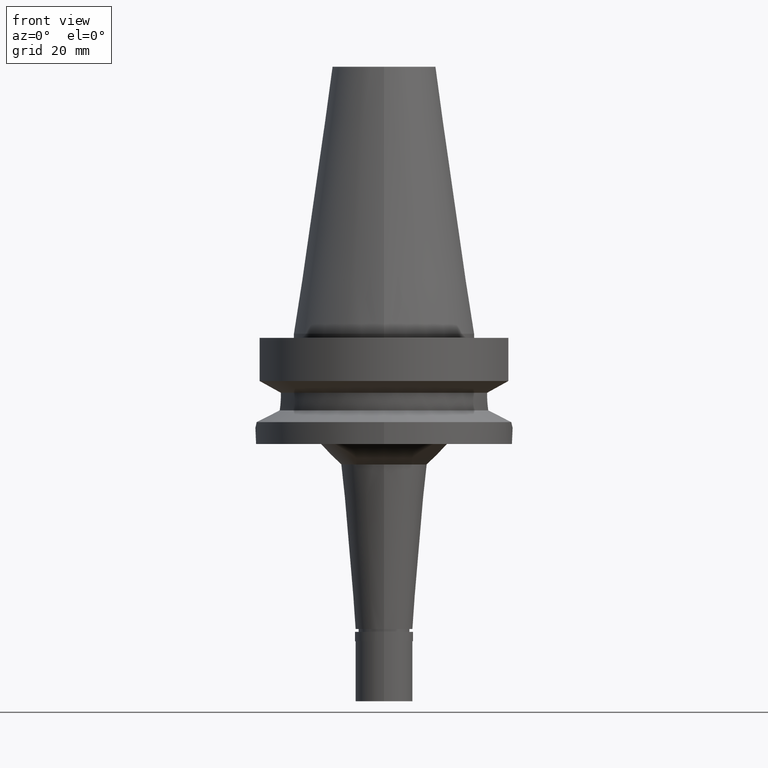
[diagram: clean part render]
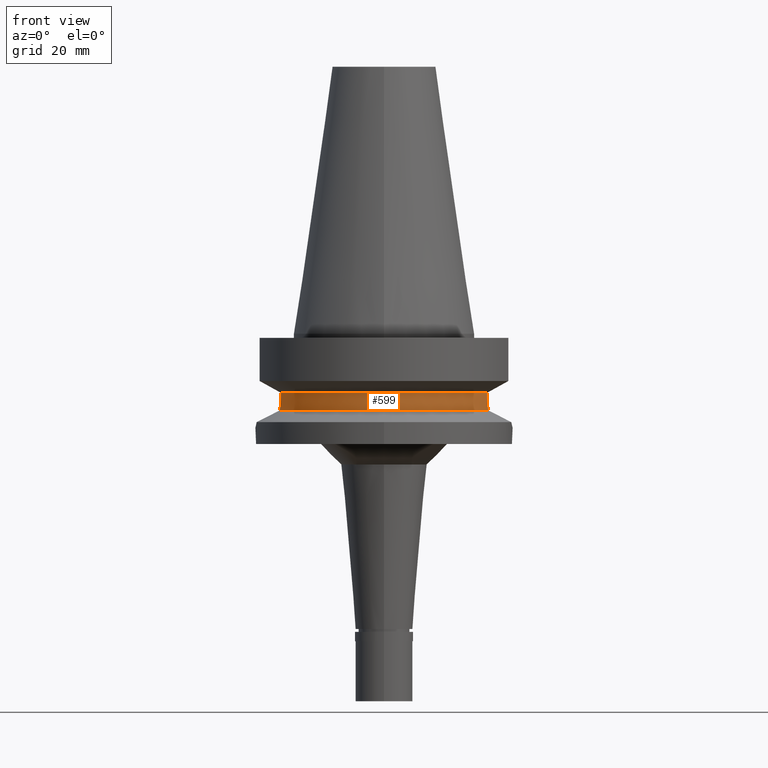
[diagram: same view with one face highlighted and labeled with its STEP entity id]
A machine part, front view. The second image highlights one B-rep face of the part: STEP entity #599.
In plain terms, the highlighted cylindrical surface (partial cylindrical patch) has radius 26.5 mm, axis along (0, 0, -1).
Its self-contained STEP definition (entity closure, byte-faithful):
#31 = CARTESIAN_POINT ( 'NONE',  ( 25.28048358772242210, -7.947040743789336226, -16.24400980667427064 ) ) ;
#63 = CARTESIAN_POINT ( 'NONE',  ( 25.31202572170775866, -7.845729406577843790, -16.75279821058729013 ) ) ;
#95 = DIRECTION ( 'NONE',  ( 0.9527442516822307583, -0.3037735849057093818, 0.0000000000000000000 ) ) ;
#160 = EDGE_CURVE ( 'NONE', #890, #975, #1692, .T. ) ;
#203 = EDGE_CURVE ( 'NONE', #2735, #408, #493, .T. ) ;
#204 = CARTESIAN_POINT ( 'NONE',  ( -25.35412323722924555, -7.708830947934377953, -17.27007949472249138 ) ) ;
#243 = DIRECTION ( 'NONE',  ( -0.9634623335000935818, -0.2678438573619981722, 0.0000000000000000000 ) ) ;
#408 = VERTEX_POINT ( 'NONE', #2970 ) ;
#417 = EDGE_LOOP ( 'NONE', ( #2520, #2829, #1437, #1981, #1786, #2125 ) ) ;
#424 = DIRECTION ( 'NONE',  ( 0.0000000000000000000, 0.0000000000000000000, 1.000000000000000000 ) ) ;
#493 = LINE ( 'NONE', #2576, #1830 ) ;
#496 = CARTESIAN_POINT ( 'NONE',  ( 25.31648647172269051, -7.831300037041386553, -16.81378020971980902 ) ) ;
#533 = AXIS2_PLACEMENT_3D ( 'NONE', #2333, #976, #95 ) ;
#544 = CARTESIAN_POINT ( 'NONE',  ( 25.29452398121202350, -7.902090651788173936, -16.48828405105369654 ) ) ;
#552 = VERTEX_POINT ( 'NONE', #1852 ) ;
#576 = FACE_OUTER_BOUND ( 'NONE', #417, .T. ) ;
#599 = ADVANCED_FACE ( 'NONE', ( #576 ), #2355, .T. ) ;
#735 = CARTESIAN_POINT ( 'NONE',  ( 25.27268336911707891, -7.971811480177046327, -16.08115959838609399 ) ) ;
#737 = DIRECTION ( 'NONE',  ( 0.0000000000000000000, 0.0000000000000000000, -1.000000000000000000 ) ) ;
#763 = AXIS2_PLACEMENT_3D ( 'NONE', #1138, #424, #243 ) ;
#879 = EDGE_CURVE ( 'NONE', #552, #2735, #2249, .T. ) ;
#890 = VERTEX_POINT ( 'NONE', #2807 ) ;
#895 = CARTESIAN_POINT ( 'NONE',  ( -25.37573308857809096, -7.637710303742681006, -17.49818662949834192 ) ) ;
#975 = VERTEX_POINT ( 'NONE', #1230 ) ;
#976 = DIRECTION ( 'NONE',  ( 0.0000000000000000000, 0.0000000000000000000, -1.000000000000000000 ) ) ;
#1024 = CARTESIAN_POINT ( 'NONE',  ( 25.53175183775000079, -7.097862220092999941, -18.74774300138999905 ) ) ;
#1027 = DIRECTION ( 'NONE',  ( 0.0000000000000000000, -1.000000000000000000, 0.0000000000000000000 ) ) ;
#1126 = CARTESIAN_POINT ( 'NONE',  ( -25.32844777903596167, -7.792527725354480239, -16.96974754110710037 ) ) ;
#1138 = CARTESIAN_POINT ( 'NONE',  ( 0.0000000000000000000, 0.0000000000000000000, -18.74774300138999905 ) ) ;
#1188 = EDGE_CURVE ( 'NONE', #552, #2856, #2068, .T. ) ;
#1230 = CARTESIAN_POINT ( 'NONE',  ( 25.24772266958000344, -8.050000000000000711, -14.94999999999999929 ) ) ;
#1232 = EDGE_CURVE ( 'NONE', #890, #408, #2356, .T. ) ;
#1289 = CARTESIAN_POINT ( 'NONE',  ( -25.48482038766499969, -7.266679548437280367, -18.43222872448169269 ) ) ;
#1368 = EDGE_CURVE ( 'NONE', #975, #2856, #2523, .T. ) ;
#1431 = CARTESIAN_POINT ( 'NONE',  ( -25.27269391207093463, -7.973288729734981040, -16.24537813256335284 ) ) ;
#1437 = ORIENTED_EDGE ( 'NONE', *, *, #1368, .F. ) ;
#1447 = CARTESIAN_POINT ( 'NONE',  ( -25.32550670071048771, -7.802071535306486894, -16.93256103012915048 ) ) ;
#1465 = DIRECTION ( 'NONE',  ( -2.938244121254066631E-06, 9.215406120122205750E-06, 0.9999999999532215300 ) ) ;
#1470 = CARTESIAN_POINT ( 'NONE',  ( 25.31950905643225269, -7.821515286679209034, -16.85442525727607332 ) ) ;
#1615 = CARTESIAN_POINT ( 'NONE',  ( -25.24772266958000344, -8.050000000000000711, -14.94999999999999929 ) ) ;
#1692 = LINE ( 'NONE', #2783, #2739 ) ;
#1715 = CARTESIAN_POINT ( 'NONE',  ( -25.32419709970849553, -7.806318959900040433, -16.91578803901792227 ) ) ;
#1744 = CARTESIAN_POINT ( 'NONE',  ( -25.53175183775000079, -7.097862220092999941, -18.74774300138999905 ) ) ;
#1786 = ORIENTED_EDGE ( 'NONE', *, *, #1232, .T. ) ;
#1819 = CARTESIAN_POINT ( 'NONE',  ( -25.33293017119196122, -7.777974374872430374, -17.02562462713450486 ) ) ;
#1830 = VECTOR ( 'NONE', #1465, 1000.000000000000114 ) ;
#1852 = CARTESIAN_POINT ( 'NONE',  ( -25.53175183775000079, -7.097862220092999941, -18.74774300138999905 ) ) ;
#1882 = CARTESIAN_POINT ( 'NONE',  ( 25.36814761471840285, -7.663830712951458679, -17.48803584499038166 ) ) ;
#1936 = CARTESIAN_POINT ( 'NONE',  ( 25.32118155423727046, -7.816096717213359746, -16.87652453452194123 ) ) ;
#1950 = CARTESIAN_POINT ( 'NONE',  ( -25.24772266958000344, -8.050000000000000711, -14.94999999999999929 ) ) ;
#1981 = ORIENTED_EDGE ( 'NONE', *, *, #160, .F. ) ;
#2040 = CARTESIAN_POINT ( 'NONE',  ( -25.34388450889710143, -7.742333382929722951, -17.15666984719476318 ) ) ;
#2068 = CIRCLE ( 'NONE', #763, 26.49999999999998224 ) ;
#2112 = CARTESIAN_POINT ( 'NONE',  ( 25.53175183775000079, -7.097862220092999941, -18.74774300138999905 ) ) ;
#2125 = ORIENTED_EDGE ( 'NONE', *, *, #203, .F. ) ;
#2126 = CARTESIAN_POINT ( 'NONE',  ( 25.30212919435223640, -7.877667573966355086, -16.61042047325791771 ) ) ;
#2175 = CARTESIAN_POINT ( 'NONE',  ( -25.24772266957999989, -8.049999999999984723, -15.58999736272119030 ) ) ;
#2200 = CARTESIAN_POINT ( 'NONE',  ( -25.44392837589771972, -7.408239565064243415, -18.11709494171709878 ) ) ;
#2249 = B_SPLINE_CURVE_WITH_KNOTS ( 'NONE', 3,
 ( #1744, #1289, #2200, #2954, #895, #204, #2040, #1819, #1126, #1447, #1715, #1431, #2175, #1950 ),
 .UNSPECIFIED., .F., .F.,
 ( 4, 2, 2, 1, 1, 2, 2, 4 ),
 ( 0.0000000000000000000, 0.2499999999999874545, 0.3749999999999825140, 0.4374999999999785727, 0.4687499999999779621, 0.4843749999999790168, 0.4999999999999800160, 1.000000000000000000 ),
 .UNSPECIFIED. ) ;
#2333 = CARTESIAN_POINT ( 'NONE',  ( 0.0000000000000000000, 1.065333950388000029E-14, -14.45225699861000024 ) ) ;
#2355 = CYLINDRICAL_SURFACE ( 'NONE', #2828, 26.50000000000000000 ) ;
#2356 = CIRCLE ( 'NONE', #533, 26.50000000000000711 ) ;
#2520 = ORIENTED_EDGE ( 'NONE', *, *, #879, .F. ) ;
#2523 = B_SPLINE_CURVE_WITH_KNOTS ( 'NONE', 3,
 ( #2803, #2630, #2845, #735, #31, #544, #2126, #63, #496, #1470, #1936, #1882, #2790, #2112 ),
 .UNSPECIFIED., .F., .F.,
 ( 4, 2, 2, 1, 1, 2, 2, 4 ),
 ( 0.0000000000000000000, 0.2499999999999729106, 0.3749999999999600320, 0.4374999999999522049, 0.4687499999999483746, 0.4843749999999478195, 0.4999999999999473754, 1.000000000000000000 ),
 .UNSPECIFIED. ) ;
#2566 = DIRECTION ( 'NONE',  ( 1.014693311834022080E-06, 3.182448466684070227E-06, -0.9999999999944211293 ) ) ;
#2576 = CARTESIAN_POINT ( 'NONE',  ( -25.24772266958000344, -8.050000000000000711, -14.94999999999999929 ) ) ;
#2630 = CARTESIAN_POINT ( 'NONE',  ( 25.24772266957999989, -8.050000000000000711, -15.26991324111208037 ) ) ;
#2735 = VERTEX_POINT ( 'NONE', #1615 ) ;
#2739 = VECTOR ( 'NONE', #2566, 1000.000000000000114 ) ;
#2783 = CARTESIAN_POINT ( 'NONE',  ( 25.24772216451000162, -8.050001584080000328, -14.45224489483999974 ) ) ;
#2790 = CARTESIAN_POINT ( 'NONE',  ( 25.43786330457131584, -7.435589081402770084, -18.11654212004048148 ) ) ;
#2803 = CARTESIAN_POINT ( 'NONE',  ( 25.24772266958000344, -8.050000000000000711, -14.94999999999999929 ) ) ;
#2807 = CARTESIAN_POINT ( 'NONE',  ( 25.24772266958000344, -8.050000000000000711, -14.45225699861000024 ) ) ;
#2818 = CARTESIAN_POINT ( 'NONE',  ( 0.0000000000000000000, 2.118271568485000005E-14, 72.96999999999999886 ) ) ;
#2828 = AXIS2_PLACEMENT_3D ( 'NONE', #2818, #737, #1027 ) ;
#2829 = ORIENTED_EDGE ( 'NONE', *, *, #1188, .T. ) ;
#2845 = CARTESIAN_POINT ( 'NONE',  ( 25.25396284446427586, -8.030907492771135026, -15.59360398737620557 ) ) ;
#2856 = VERTEX_POINT ( 'NONE', #1024 ) ;
#2954 = CARTESIAN_POINT ( 'NONE',  ( -25.39164951572342588, -7.584807667340694337, -17.65197957158412834 ) ) ;
#2970 = CARTESIAN_POINT ( 'NONE',  ( -25.24772413196999921, -8.049995413418999490, -14.45229204608000018 ) ) ;